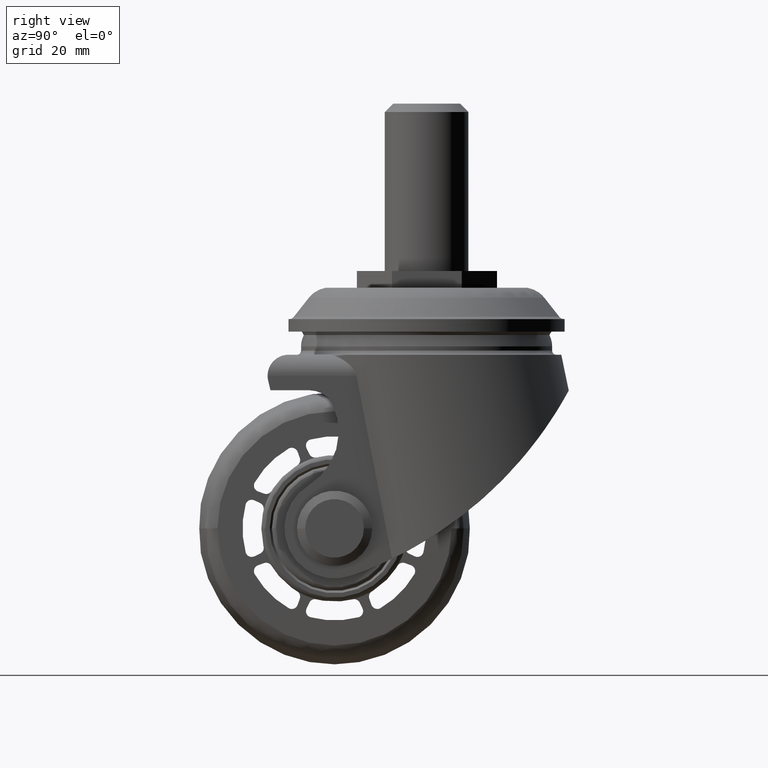
[diagram: clean part render]
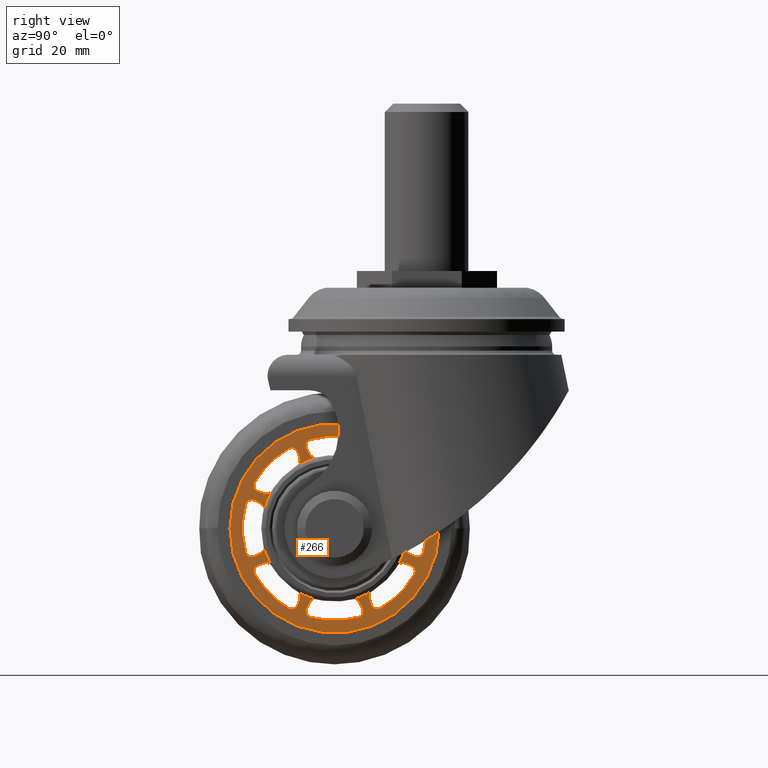
[diagram: same view with one face highlighted and labeled with its STEP entity id]
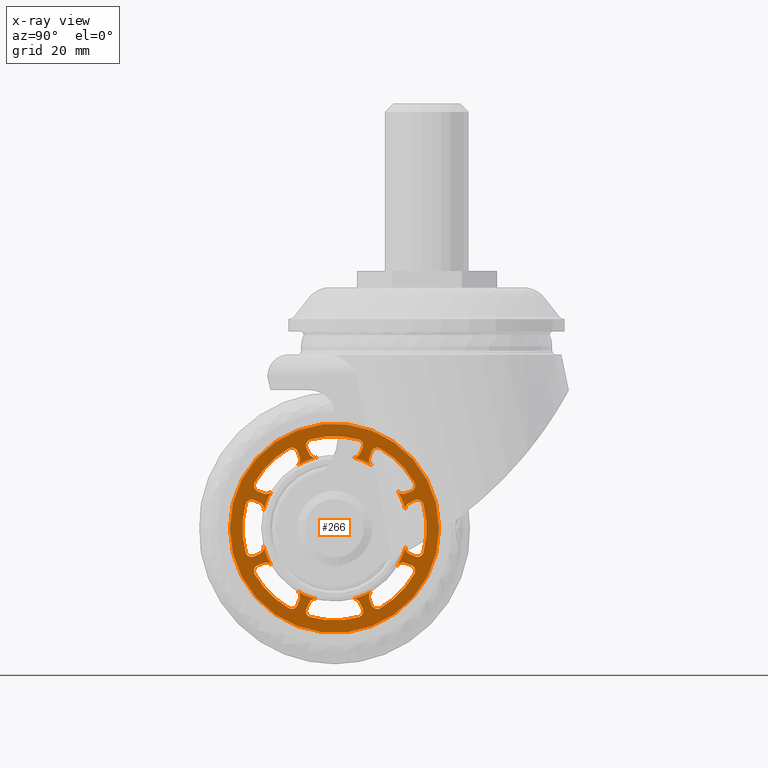
[diagram: x-ray of the same camera — body ghosted, the highlighted face saturated]
A machine part, right view. The second image highlights one B-rep face of the part: STEP entity #266.
The next image is the same camera in x-ray: the body ghosted, the highlighted face saturated — about 0% of this face is hidden behind the body in this view.
In plain terms, the highlighted planar face has unit normal (1, 0, 0).
Its self-contained STEP definition (entity closure, byte-faithful):
#266=ADVANCED_FACE('',(#1881,#1882),#1880,.T.);
#1880=PLANE('',#3576);
#1881=FACE_OUTER_BOUND('',#3577,.T.);
#1882=FACE_BOUND('',#3578,.T.);
#3573=CARTESIAN_POINT('',(2.00000000000E+01,-5.19615236035E+01,5.74999993100E+01));
#3574=DIRECTION('',(1.00000000000E+00,0.00000000000E+00,0.00000000000E+00));
#3575=DIRECTION('',(0.00000000000E+00,0.00000000000E+00,-1.00000000000E+00));
#3576=AXIS2_PLACEMENT_3D('',#3573,#3574,#3575);
#3577=EDGE_LOOP('',(#4996,#4997));
#3578=EDGE_LOOP('',(#4998,#4999,#5000,#5001,#5002,#5003,#5004,#5005,#5006,#5007,#5008,#5009,#5010,#5011,#5012,#5013,#5014,#5015,#5016,#5017,#5018,#5019,#5020,#5021,#5022,#5023,#5024,#5025,#5026,#5027,#5028,#5029,#5030,#5031,#5032,#5033,#5034,#5035,#5036,#5037,#5038,#5039,#5040,#5041,#5042,#5043,#5044,#5045,#5046,#5047,#5048,#5049,#5050,#5051,#5052,#5053,#5054,#5055,#5056,#5057,#5058,#5059,#5060,#5061));
#4996=ORIENTED_EDGE('',*,*,#5753,.T.);
#4997=ORIENTED_EDGE('',*,*,#5754,.T.);
#4998=ORIENTED_EDGE('',*,*,#5596,.F.);
#4999=ORIENTED_EDGE('',*,*,#5600,.F.);
#5000=ORIENTED_EDGE('',*,*,#5603,.F.);
#5001=ORIENTED_EDGE('',*,*,#5606,.F.);
#5002=ORIENTED_EDGE('',*,*,#5586,.F.);
#5003=ORIENTED_EDGE('',*,*,#5590,.F.);
#5004=ORIENTED_EDGE('',*,*,#5593,.F.);
#5005=ORIENTED_EDGE('',*,*,#5755,.F.);
#5006=ORIENTED_EDGE('',*,*,#5684,.F.);
#5007=ORIENTED_EDGE('',*,*,#5688,.F.);
#5008=ORIENTED_EDGE('',*,*,#5691,.F.);
#5009=ORIENTED_EDGE('',*,*,#5694,.F.);
#5010=ORIENTED_EDGE('',*,*,#5674,.F.);
#5011=ORIENTED_EDGE('',*,*,#5678,.F.);
#5012=ORIENTED_EDGE('',*,*,#5681,.F.);
#5013=ORIENTED_EDGE('',*,*,#5756,.F.);
#5014=ORIENTED_EDGE('',*,*,#5706,.F.);
#5015=ORIENTED_EDGE('',*,*,#5710,.F.);
#5016=ORIENTED_EDGE('',*,*,#5713,.F.);
#5017=ORIENTED_EDGE('',*,*,#5716,.F.);
#5018=ORIENTED_EDGE('',*,*,#5696,.F.);
#5019=ORIENTED_EDGE('',*,*,#5700,.F.);
#5020=ORIENTED_EDGE('',*,*,#5703,.F.);
#5021=ORIENTED_EDGE('',*,*,#5757,.F.);
#5022=ORIENTED_EDGE('',*,*,#5569,.F.);
#5023=ORIENTED_EDGE('',*,*,#5577,.F.);
#5024=ORIENTED_EDGE('',*,*,#5580,.F.);
#5025=ORIENTED_EDGE('',*,*,#5583,.F.);
#5026=ORIENTED_EDGE('',*,*,#5758,.F.);
#5027=ORIENTED_EDGE('',*,*,#5759,.F.);
#5028=ORIENTED_EDGE('',*,*,#5573,.F.);
#5029=ORIENTED_EDGE('',*,*,#5760,.F.);
#5030=ORIENTED_EDGE('',*,*,#5761,.F.);
#5031=ORIENTED_EDGE('',*,*,#5762,.F.);
#5032=ORIENTED_EDGE('',*,*,#5763,.F.);
#5033=ORIENTED_EDGE('',*,*,#5764,.F.);
#5034=ORIENTED_EDGE('',*,*,#5765,.F.);
#5035=ORIENTED_EDGE('',*,*,#5766,.F.);
#5036=ORIENTED_EDGE('',*,*,#5767,.F.);
#5037=ORIENTED_EDGE('',*,*,#5768,.F.);
#5038=ORIENTED_EDGE('',*,*,#5662,.F.);
#5039=ORIENTED_EDGE('',*,*,#5666,.F.);
#5040=ORIENTED_EDGE('',*,*,#5669,.F.);
#5041=ORIENTED_EDGE('',*,*,#5672,.F.);
#5042=ORIENTED_EDGE('',*,*,#5652,.F.);
#5043=ORIENTED_EDGE('',*,*,#5656,.F.);
#5044=ORIENTED_EDGE('',*,*,#5659,.F.);
#5045=ORIENTED_EDGE('',*,*,#5769,.F.);
#5046=ORIENTED_EDGE('',*,*,#5640,.F.);
#5047=ORIENTED_EDGE('',*,*,#5644,.F.);
#5048=ORIENTED_EDGE('',*,*,#5647,.F.);
#5049=ORIENTED_EDGE('',*,*,#5650,.F.);
#5050=ORIENTED_EDGE('',*,*,#5630,.F.);
#5051=ORIENTED_EDGE('',*,*,#5634,.F.);
#5052=ORIENTED_EDGE('',*,*,#5637,.F.);
#5053=ORIENTED_EDGE('',*,*,#5770,.F.);
#5054=ORIENTED_EDGE('',*,*,#5618,.F.);
#5055=ORIENTED_EDGE('',*,*,#5622,.F.);
#5056=ORIENTED_EDGE('',*,*,#5625,.F.);
#5057=ORIENTED_EDGE('',*,*,#5628,.F.);
#5058=ORIENTED_EDGE('',*,*,#5608,.F.);
#5059=ORIENTED_EDGE('',*,*,#5612,.F.);
#5060=ORIENTED_EDGE('',*,*,#5615,.F.);
#5061=ORIENTED_EDGE('',*,*,#5771,.F.);
#5569=EDGE_CURVE('',#7499,#7500,#7501,.T.);
#5573=EDGE_CURVE('',#7527,#7528,#7529,.T.);
#5577=EDGE_CURVE('',#7555,#7499,#7556,.T.);
#5580=EDGE_CURVE('',#7575,#7555,#7576,.T.);
#5583=EDGE_CURVE('',#7595,#7575,#7596,.T.);
#5586=EDGE_CURVE('',#7615,#7616,#7617,.T.);
#5590=EDGE_CURVE('',#7643,#7615,#7644,.T.);
#5593=EDGE_CURVE('',#7663,#7643,#7664,.T.);
#5596=EDGE_CURVE('',#7683,#7684,#7685,.T.);
#5600=EDGE_CURVE('',#7711,#7683,#7712,.T.);
#5603=EDGE_CURVE('',#7731,#7711,#7732,.T.);
#5606=EDGE_CURVE('',#7616,#7731,#7751,.T.);
#5608=EDGE_CURVE('',#7763,#7764,#7765,.T.);
#5612=EDGE_CURVE('',#7791,#7763,#7792,.T.);
#5615=EDGE_CURVE('',#7811,#7791,#7812,.T.);
#5618=EDGE_CURVE('',#7831,#7832,#7833,.T.);
#5622=EDGE_CURVE('',#7859,#7831,#7860,.T.);
#5625=EDGE_CURVE('',#7879,#7859,#7880,.T.);
#5628=EDGE_CURVE('',#7764,#7879,#7899,.T.);
#5630=EDGE_CURVE('',#7911,#7912,#7913,.T.);
#5634=EDGE_CURVE('',#7939,#7911,#7940,.T.);
#5637=EDGE_CURVE('',#7959,#7939,#7960,.T.);
#5640=EDGE_CURVE('',#7979,#7980,#7981,.T.);
#5644=EDGE_CURVE('',#8007,#7979,#8008,.T.);
#5647=EDGE_CURVE('',#8027,#8007,#8028,.T.);
#5650=EDGE_CURVE('',#7912,#8027,#8047,.T.);
#5652=EDGE_CURVE('',#8059,#8060,#8061,.T.);
#5656=EDGE_CURVE('',#8087,#8059,#8088,.T.);
#5659=EDGE_CURVE('',#8107,#8087,#8108,.T.);
#5662=EDGE_CURVE('',#8127,#8128,#8129,.T.);
#5666=EDGE_CURVE('',#8155,#8127,#8156,.T.);
#5669=EDGE_CURVE('',#8175,#8155,#8176,.T.);
#5672=EDGE_CURVE('',#8060,#8175,#8195,.T.);
#5674=EDGE_CURVE('',#8207,#8208,#8209,.T.);
#5678=EDGE_CURVE('',#8235,#8207,#8236,.T.);
#5681=EDGE_CURVE('',#8255,#8235,#8256,.T.);
#5684=EDGE_CURVE('',#8275,#8276,#8277,.T.);
#5688=EDGE_CURVE('',#8303,#8275,#8304,.T.);
#5691=EDGE_CURVE('',#8323,#8303,#8324,.T.);
#5694=EDGE_CURVE('',#8208,#8323,#8343,.T.);
#5696=EDGE_CURVE('',#8355,#8356,#8357,.T.);
#5700=EDGE_CURVE('',#8383,#8355,#8384,.T.);
#5703=EDGE_CURVE('',#8403,#8383,#8404,.T.);
#5706=EDGE_CURVE('',#8423,#8424,#8425,.T.);
#5710=EDGE_CURVE('',#8451,#8423,#8452,.T.);
#5713=EDGE_CURVE('',#8471,#8451,#8472,.T.);
#5716=EDGE_CURVE('',#8356,#8471,#8491,.T.);
#5753=EDGE_CURVE('',#8740,#8741,#8742,.T.);
#5754=EDGE_CURVE('',#8741,#8740,#8748,.T.);
#5755=EDGE_CURVE('',#8276,#7663,#8754,.T.);
#5756=EDGE_CURVE('',#8424,#8255,#8760,.T.);
#5757=EDGE_CURVE('',#7500,#8403,#8766,.T.);
#5758=EDGE_CURVE('',#8772,#7595,#8773,.T.);
#5759=EDGE_CURVE('',#7528,#8772,#8779,.T.);
#5760=EDGE_CURVE('',#8785,#7527,#8786,.T.);
#5761=EDGE_CURVE('',#8792,#8785,#8793,.T.);
#5762=EDGE_CURVE('',#8799,#8792,#8800,.T.);
#5763=EDGE_CURVE('',#8806,#8799,#8807,.T.);
#5764=EDGE_CURVE('',#8813,#8806,#8814,.T.);
#5765=EDGE_CURVE('',#8820,#8813,#8821,.T.);
#5766=EDGE_CURVE('',#8827,#8820,#8828,.T.);
#5767=EDGE_CURVE('',#8834,#8827,#8835,.T.);
#5768=EDGE_CURVE('',#8128,#8834,#8841,.T.);
#5769=EDGE_CURVE('',#7980,#8107,#8847,.T.);
#5770=EDGE_CURVE('',#7832,#7959,#8853,.T.);
#5771=EDGE_CURVE('',#7684,#7811,#8859,.T.);
#7499=VERTEX_POINT('',#10835);
#7500=VERTEX_POINT('',#10836);
#7501=CIRCLE('',#10840,1.50000000000E+00);
#7527=VERTEX_POINT('',#10853);
#7528=VERTEX_POINT('',#10854);
#7529=CIRCLE('',#10858,1.49999980000E+00);
#7555=VERTEX_POINT('',#10871);
#7556=LINE('',#10872,#10873);
#7575=VERTEX_POINT('',#10882);
#7576=CIRCLE('',#10886,1.50000000000E+00);
#7595=VERTEX_POINT('',#10895);
#7596=CIRCLE('',#10899,2.20000001000E+01);
#7615=VERTEX_POINT('',#10908);
#7616=VERTEX_POINT('',#10909);
#7617=CIRCLE('',#10913,1.50000000000E+00);
#7643=VERTEX_POINT('',#10926);
#7644=LINE('',#10927,#10928);
#7663=VERTEX_POINT('',#10937);
#7664=CIRCLE('',#10941,1.49999980000E+00);
#7683=VERTEX_POINT('',#10950);
#7684=VERTEX_POINT('',#10951);
#7685=CIRCLE('',#10955,1.50000000000E+00);
#7711=VERTEX_POINT('',#10968);
#7712=LINE('',#10969,#10970);
#7731=VERTEX_POINT('',#10979);
#7732=CIRCLE('',#10983,1.50000000000E+00);
#7751=CIRCLE('',#10995,2.20000001000E+01);
#7763=VERTEX_POINT('',#11000);
#7764=VERTEX_POINT('',#11001);
#7765=CIRCLE('',#11005,1.50000000000E+00);
#7791=VERTEX_POINT('',#11018);
#7792=LINE('',#11019,#11020);
#7811=VERTEX_POINT('',#11029);
#7812=CIRCLE('',#11033,1.49999980000E+00);
#7831=VERTEX_POINT('',#11042);
#7832=VERTEX_POINT('',#11043);
#7833=CIRCLE('',#11047,1.50000000000E+00);
#7859=VERTEX_POINT('',#11060);
#7860=LINE('',#11061,#11062);
#7879=VERTEX_POINT('',#11071);
#7880=CIRCLE('',#11075,1.50000000000E+00);
#7899=CIRCLE('',#11087,2.20000001000E+01);
#7911=VERTEX_POINT('',#11092);
#7912=VERTEX_POINT('',#11093);
#7913=CIRCLE('',#11097,1.50000000000E+00);
#7939=VERTEX_POINT('',#11110);
#7940=LINE('',#11111,#11112);
#7959=VERTEX_POINT('',#11121);
#7960=CIRCLE('',#11125,1.49999980000E+00);
#7979=VERTEX_POINT('',#11134);
#7980=VERTEX_POINT('',#11135);
#7981=CIRCLE('',#11139,1.50000000000E+00);
#8007=VERTEX_POINT('',#11152);
#8008=LINE('',#11153,#11154);
#8027=VERTEX_POINT('',#11163);
#8028=CIRCLE('',#11167,1.50000000000E+00);
#8047=CIRCLE('',#11179,2.20000001000E+01);
#8059=VERTEX_POINT('',#11184);
#8060=VERTEX_POINT('',#11185);
#8061=CIRCLE('',#11189,1.50000000000E+00);
#8087=VERTEX_POINT('',#11202);
#8088=LINE('',#11203,#11204);
#8107=VERTEX_POINT('',#11213);
#8108=CIRCLE('',#11217,1.49999980000E+00);
#8127=VERTEX_POINT('',#11226);
#8128=VERTEX_POINT('',#11227);
#8129=CIRCLE('',#11231,1.50000000000E+00);
#8155=VERTEX_POINT('',#11244);
#8156=LINE('',#11245,#11246);
#8175=VERTEX_POINT('',#11255);
#8176=CIRCLE('',#11259,1.50000000000E+00);
#8195=CIRCLE('',#11271,2.20000001000E+01);
#8207=VERTEX_POINT('',#11276);
#8208=VERTEX_POINT('',#11277);
#8209=CIRCLE('',#11281,1.50000000000E+00);
#8235=VERTEX_POINT('',#11294);
#8236=LINE('',#11295,#11296);
#8255=VERTEX_POINT('',#11305);
#8256=CIRCLE('',#11309,1.49999980000E+00);
#8275=VERTEX_POINT('',#11318);
#8276=VERTEX_POINT('',#11319);
#8277=CIRCLE('',#11323,1.50000000000E+00);
#8303=VERTEX_POINT('',#11336);
#8304=LINE('',#11337,#11338);
#8323=VERTEX_POINT('',#11347);
#8324=CIRCLE('',#11351,1.50000000000E+00);
#8343=CIRCLE('',#11363,2.20000001000E+01);
#8355=VERTEX_POINT('',#11368);
#8356=VERTEX_POINT('',#11369);
#8357=CIRCLE('',#11373,1.50000000000E+00);
#8383=VERTEX_POINT('',#11386);
#8384=LINE('',#11387,#11388);
#8403=VERTEX_POINT('',#11397);
#8404=CIRCLE('',#11401,1.49999980000E+00);
#8423=VERTEX_POINT('',#11410);
#8424=VERTEX_POINT('',#11411);
#8425=CIRCLE('',#11415,1.50000000000E+00);
#8451=VERTEX_POINT('',#11428);
#8452=LINE('',#11429,#11430);
#8471=VERTEX_POINT('',#11439);
#8472=CIRCLE('',#11443,1.50000000000E+00);
#8491=CIRCLE('',#11455,2.20000001000E+01);
#8740=VERTEX_POINT('',#11624);
#8741=VERTEX_POINT('',#11625);
#8742=CIRCLE('',#11629,2.49999997000E+01);
#8748=CIRCLE('',#11633,2.49999997000E+01);
#8754=CIRCLE('',#11637,1.75000000000E+01);
#8760=CIRCLE('',#11641,1.75000000000E+01);
#8766=CIRCLE('',#11645,1.75000000000E+01);
#8772=VERTEX_POINT('',#11646);
#8773=CIRCLE('',#11650,1.50000000000E+00);
#8779=LINE('',#11651,#11652);
#8785=VERTEX_POINT('',#11654);
#8786=CIRCLE('',#11658,1.75000000000E+01);
#8792=VERTEX_POINT('',#11659);
#8793=CIRCLE('',#11663,1.50000000000E+00);
#8799=VERTEX_POINT('',#11664);
#8800=LINE('',#11665,#11666);
#8806=VERTEX_POINT('',#11668);
#8807=CIRCLE('',#11672,1.50000000000E+00);
#8813=VERTEX_POINT('',#11673);
#8814=CIRCLE('',#11677,2.20000001000E+01);
#8820=VERTEX_POINT('',#11678);
#8821=CIRCLE('',#11682,1.50000000000E+00);
#8827=VERTEX_POINT('',#11683);
#8828=LINE('',#11684,#11685);
#8834=VERTEX_POINT('',#11687);
#8835=CIRCLE('',#11691,1.49999980000E+00);
#8841=CIRCLE('',#11695,1.75000000000E+01);
#8847=CIRCLE('',#11699,1.75000000000E+01);
#8853=CIRCLE('',#11703,1.75000000000E+01);
#8859=CIRCLE('',#11707,1.75000000000E+01);
#10835=CARTESIAN_POINT('',(2.00000000000E+01,1.68301224777E+01,-8.30188446219E+00));
#10836=CARTESIAN_POINT('',(2.00000000000E+01,1.50391446252E+01,-8.94841488441E+00));
#10837=CARTESIAN_POINT('',(2.00000000000E+01,1.63282142074E+01,-9.71542190007E+00));
#10838=DIRECTION('',(1.00000000000E+00,0.00000000000E+00,0.00000000000E+00));
#10839=DIRECTION('',(-0.00000000000E+00,7.07106781187E-01,7.07106781187E-01));
#10840=AXIS2_PLACEMENT_3D('',#10837,#10838,#10839);
#10853=CARTESIAN_POINT('',(2.00000000000E+01,8.94841477995E+00,-1.50391447455E+01));
#10854=CARTESIAN_POINT('',(2.00000000000E+01,8.30188440723E+00,-1.68301223229E+01));
#10855=CARTESIAN_POINT('',(2.00000000000E+01,9.71542165663E+00,-1.63282141196E+01));
#10856=DIRECTION('',(1.00000000000E+00,0.00000000000E+00,0.00000000000E+00));
#10857=DIRECTION('',(-0.00000000000E+00,7.07106781187E-01,7.07106781187E-01));
#10858=AXIS2_PLACEMENT_3D('',#10855,#10856,#10857);
#10871=CARTESIAN_POINT('',(2.00000000000E+01,1.82690625420E+01,-8.81281250648E+00));
#10872=CARTESIAN_POINT('',(2.00000000000E+01,1.82690625420E+01,-8.81281250648E+00));
#10873=VECTOR('',#10874,1.52695644178E+00);
#10874=DIRECTION('',(0.00000000000E+00,-9.42358291915E-01,3.34605513493E-01));
#10882=CARTESIAN_POINT('',(2.00000000000E+01,1.90671899438E+01,-1.09746194488E+01));
#10883=CARTESIAN_POINT('',(2.00000000000E+01,1.77671542717E+01,-1.02263499444E+01));
#10884=DIRECTION('',(1.00000000000E+00,0.00000000000E+00,0.00000000000E+00));
#10885=DIRECTION('',(-0.00000000000E+00,8.66690448052E-01,-4.98846336315E-01));
#10886=AXIS2_PLACEMENT_3D('',#10883,#10884,#10885);
#10895=CARTESIAN_POINT('',(2.00000000000E+01,1.09746195284E+01,-1.90671898980E+01));
#10896=CARTESIAN_POINT('',(2.00000000000E+01,-7.11448145341E-14,7.11448145341E-14));
#10897=DIRECTION('',(1.00000000000E+00,0.00000000000E+00,0.00000000000E+00));
#10898=DIRECTION('',(-0.00000000000E+00,7.07106781187E-01,7.07106781187E-01));
#10899=AXIS2_PLACEMENT_3D('',#10896,#10897,#10898);
#10908=CARTESIAN_POINT('',(2.00000000000E+01,6.68657852470E+00,1.91497774940E+01));
#10909=CARTESIAN_POINT('',(2.00000000000E+01,5.72231138554E+00,2.12427671645E+01));
#10910=CARTESIAN_POINT('',(2.00000000000E+01,5.33215387550E+00,1.97943966604E+01));
#10911=DIRECTION('',(1.00000000000E+00,0.00000000000E+00,0.00000000000E+00));
#10912=DIRECTION('',(-0.00000000000E+00,-1.00000000000E+00,6.12323399574E-17));
#10913=AXIS2_PLACEMENT_3D('',#10910,#10911,#10912);
#10926=CARTESIAN_POINT('',(2.00000000000E+01,6.03037486172E+00,1.77710123837E+01));
#10927=CARTESIAN_POINT('',(2.00000000000E+01,6.03037486172E+00,1.77710123837E+01));
#10928=VECTOR('',#10929,1.52695660605E+00);
#10929=DIRECTION('',(0.00000000000E+00,4.29746110907E-01,9.02949766133E-01));
#10937=CARTESIAN_POINT('',(2.00000000000E+01,4.30679646101E+00,1.69617660046E+01));
#10938=CARTESIAN_POINT('',(2.00000000000E+01,4.67595039311E+00,1.84156314641E+01));
#10939=DIRECTION('',(1.00000000000E+00,0.00000000000E+00,0.00000000000E+00));
#10940=DIRECTION('',(-0.00000000000E+00,-1.00000000000E+00,6.12323399574E-17));
#10941=AXIS2_PLACEMENT_3D('',#10938,#10939,#10940);
#10950=CARTESIAN_POINT('',(2.00000000000E+01,-6.03037493231E+00,1.77710125320E+01));
#10951=CARTESIAN_POINT('',(2.00000000000E+01,-4.30679630206E+00,1.69617659933E+01));
#10952=CARTESIAN_POINT('',(2.00000000000E+01,-4.67595028311E+00,1.84156316984E+01));
#10953=DIRECTION('',(1.00000000000E+00,0.00000000000E+00,0.00000000000E+00));
#10954=DIRECTION('',(-0.00000000000E+00,-1.00000000000E+00,6.12323399574E-17));
#10955=AXIS2_PLACEMENT_3D('',#10952,#10953,#10954);
#10968=CARTESIAN_POINT('',(2.00000000000E+01,-6.68657852470E+00,1.91497774940E+01));
#10969=CARTESIAN_POINT('',(2.00000000000E+01,-6.68657852470E+00,1.91497774940E+01));
#10970=VECTOR('',#10971,1.52695644178E+00);
#10971=DIRECTION('',(0.00000000000E+00,4.29746110907E-01,-9.02949766133E-01));
#10979=CARTESIAN_POINT('',(2.00000000000E+01,-5.72231147424E+00,2.12427671406E+01));
#10980=CARTESIAN_POINT('',(2.00000000000E+01,-5.33215387550E+00,1.97943966604E+01));
#10981=DIRECTION('',(1.00000000000E+00,0.00000000000E+00,0.00000000000E+00));
#10982=DIRECTION('',(-0.00000000000E+00,-2.60105065829E-01,9.65580320186E-01));
#10983=AXIS2_PLACEMENT_3D('',#10980,#10981,#10982);
#10992=CARTESIAN_POINT('',(2.00000000000E+01,-6.16082830156E-30,-1.00613961607E-13));
#10993=DIRECTION('',(1.00000000000E+00,0.00000000000E+00,0.00000000000E+00));
#10994=DIRECTION('',(-0.00000000000E+00,-1.00000000000E+00,6.12323399574E-17));
#10995=AXIS2_PLACEMENT_3D('',#10992,#10993,#10994);
#11000=CARTESIAN_POINT('',(2.00000000000E+01,-8.81281250648E+00,1.82690625420E+01));
#11001=CARTESIAN_POINT('',(2.00000000000E+01,-1.09746195284E+01,1.90671898980E+01));
#11002=CARTESIAN_POINT('',(2.00000000000E+01,-1.02263499444E+01,1.77671542717E+01));
#11003=DIRECTION('',(1.00000000000E+00,0.00000000000E+00,-0.00000000000E+00));
#11004=DIRECTION('',(-0.00000000000E+00,-7.07106781187E-01,-7.07106781187E-01));
#11005=AXIS2_PLACEMENT_3D('',#11002,#11003,#11004);
#11018=CARTESIAN_POINT('',(2.00000000000E+01,-8.30188440723E+00,1.68301223229E+01));
#11019=CARTESIAN_POINT('',(2.00000000000E+01,-8.30188440723E+00,1.68301223229E+01));
#11020=VECTOR('',#11021,1.52695660605E+00);
#11021=DIRECTION('',(0.00000000000E+00,-3.34605513493E-01,9.42358291915E-01));
#11029=CARTESIAN_POINT('',(2.00000000000E+01,-8.94841477995E+00,1.50391447455E+01));
#11030=CARTESIAN_POINT('',(2.00000000000E+01,-9.71542165663E+00,1.63282141196E+01));
#11031=DIRECTION('',(1.00000000000E+00,0.00000000000E+00,-0.00000000000E+00));
#11032=DIRECTION('',(-0.00000000000E+00,-7.07106781187E-01,-7.07106781187E-01));
#11033=AXIS2_PLACEMENT_3D('',#11030,#11031,#11032);
#11042=CARTESIAN_POINT('',(2.00000000000E+01,-1.68301224777E+01,8.30188446219E+00));
#11043=CARTESIAN_POINT('',(2.00000000000E+01,-1.50391446252E+01,8.94841488441E+00));
#11044=CARTESIAN_POINT('',(2.00000000000E+01,-1.63282142074E+01,9.71542190007E+00));
#11045=DIRECTION('',(1.00000000000E+00,0.00000000000E+00,-0.00000000000E+00));
#11046=DIRECTION('',(-0.00000000000E+00,-7.07106781187E-01,-7.07106781187E-01));
#11047=AXIS2_PLACEMENT_3D('',#11044,#11045,#11046);
#11060=CARTESIAN_POINT('',(2.00000000000E+01,-1.82690625420E+01,8.81281250648E+00));
#11061=CARTESIAN_POINT('',(2.00000000000E+01,-1.82690625420E+01,8.81281250648E+00));
#11062=VECTOR('',#11063,1.52695644178E+00);
#11063=DIRECTION('',(0.00000000000E+00,9.42358291915E-01,-3.34605513493E-01));
#11071=CARTESIAN_POINT('',(2.00000000000E+01,-1.90671899438E+01,1.09746194488E+01));
#11072=CARTESIAN_POINT('',(2.00000000000E+01,-1.77671542717E+01,1.02263499444E+01));
#11073=DIRECTION('',(1.00000000000E+00,0.00000000000E+00,0.00000000000E+00));
#11074=DIRECTION('',(0.00000000000E+00,-8.66690448052E-01,4.98846336315E-01));
#11075=AXIS2_PLACEMENT_3D('',#11072,#11073,#11074);
#11084=CARTESIAN_POINT('',(2.00000000000E+01,7.11448145341E-14,-7.11448145341E-14));
#11085=DIRECTION('',(1.00000000000E+00,0.00000000000E+00,-0.00000000000E+00));
#11086=DIRECTION('',(-0.00000000000E+00,-7.07106781187E-01,-7.07106781187E-01));
#11087=AXIS2_PLACEMENT_3D('',#11084,#11085,#11086);
#11092=CARTESIAN_POINT('',(2.00000000000E+01,-1.91497774940E+01,6.68657852470E+00));
#11093=CARTESIAN_POINT('',(2.00000000000E+01,-2.12427671645E+01,5.72231138554E+00));
#11094=CARTESIAN_POINT('',(2.00000000000E+01,-1.97943966604E+01,5.33215387550E+00));
#11095=DIRECTION('',(1.00000000000E+00,0.00000000000E+00,-0.00000000000E+00));
#11096=DIRECTION('',(-0.00000000000E+00,-1.22464679915E-16,-1.00000000000E+00));
#11097=AXIS2_PLACEMENT_3D('',#11094,#11095,#11096);
#11110=CARTESIAN_POINT('',(2.00000000000E+01,-1.77710123837E+01,6.03037486172E+00));
#11111=CARTESIAN_POINT('',(2.00000000000E+01,-1.77710123837E+01,6.03037486172E+00));
#11112=VECTOR('',#11113,1.52695660605E+00);
#11113=DIRECTION('',(0.00000000000E+00,-9.02949766133E-01,4.29746110907E-01));
#11121=CARTESIAN_POINT('',(2.00000000000E+01,-1.69617660046E+01,4.30679646101E+00));
#11122=CARTESIAN_POINT('',(2.00000000000E+01,-1.84156314641E+01,4.67595039311E+00));
#11123=DIRECTION('',(1.00000000000E+00,0.00000000000E+00,-0.00000000000E+00));
#11124=DIRECTION('',(-0.00000000000E+00,-1.22464679915E-16,-1.00000000000E+00));
#11125=AXIS2_PLACEMENT_3D('',#11122,#11123,#11124);
#11134=CARTESIAN_POINT('',(2.00000000000E+01,-1.77710125320E+01,-6.03037493231E+00));
#11135=CARTESIAN_POINT('',(2.00000000000E+01,-1.69617659933E+01,-4.30679630206E+00));
#11136=CARTESIAN_POINT('',(2.00000000000E+01,-1.84156316984E+01,-4.67595028311E+00));
#11137=DIRECTION('',(1.00000000000E+00,0.00000000000E+00,-0.00000000000E+00));
#11138=DIRECTION('',(-0.00000000000E+00,-1.22464679915E-16,-1.00000000000E+00));
#11139=AXIS2_PLACEMENT_3D('',#11136,#11137,#11138);
#11152=CARTESIAN_POINT('',(2.00000000000E+01,-1.91497774940E+01,-6.68657852470E+00));
#11153=CARTESIAN_POINT('',(2.00000000000E+01,-1.91497774940E+01,-6.68657852470E+00));
#11154=VECTOR('',#11155,1.52695644178E+00);
#11155=DIRECTION('',(0.00000000000E+00,9.02949766133E-01,4.29746110907E-01));
#11163=CARTESIAN_POINT('',(2.00000000000E+01,-2.12427671406E+01,-5.72231147424E+00));
#11164=CARTESIAN_POINT('',(2.00000000000E+01,-1.97943966604E+01,-5.33215387550E+00));
#11165=DIRECTION('',(1.00000000000E+00,0.00000000000E+00,0.00000000000E+00));
#11166=DIRECTION('',(0.00000000000E+00,-9.65580320186E-01,-2.60105065829E-01));
#11167=AXIS2_PLACEMENT_3D('',#11164,#11165,#11166);
#11176=CARTESIAN_POINT('',(2.00000000000E+01,1.00613961607E-13,-1.23216566031E-29));
#11177=DIRECTION('',(1.00000000000E+00,0.00000000000E+00,-0.00000000000E+00));
#11178=DIRECTION('',(-0.00000000000E+00,-1.22464679915E-16,-1.00000000000E+00));
#11179=AXIS2_PLACEMENT_3D('',#11176,#11177,#11178);
#11184=CARTESIAN_POINT('',(2.00000000000E+01,-1.82690625420E+01,-8.81281250648E+00));
#11185=CARTESIAN_POINT('',(2.00000000000E+01,-1.90671898980E+01,-1.09746195284E+01));
#11186=CARTESIAN_POINT('',(2.00000000000E+01,-1.77671542717E+01,-1.02263499444E+01));
#11187=DIRECTION('',(1.00000000000E+00,0.00000000000E+00,0.00000000000E+00));
#11188=DIRECTION('',(-0.00000000000E+00,7.07106781187E-01,-7.07106781187E-01));
#11189=AXIS2_PLACEMENT_3D('',#11186,#11187,#11188);
#11202=CARTESIAN_POINT('',(2.00000000000E+01,-1.68301223229E+01,-8.30188440723E+00));
#11203=CARTESIAN_POINT('',(2.00000000000E+01,-1.68301223229E+01,-8.30188440723E+00));
#11204=VECTOR('',#11205,1.52695660605E+00);
#11205=DIRECTION('',(0.00000000000E+00,-9.42358291915E-01,-3.34605513493E-01));
#11213=CARTESIAN_POINT('',(2.00000000000E+01,-1.50391447455E+01,-8.94841477995E+00));
#11214=CARTESIAN_POINT('',(2.00000000000E+01,-1.63282141196E+01,-9.71542165663E+00));
#11215=DIRECTION('',(1.00000000000E+00,0.00000000000E+00,0.00000000000E+00));
#11216=DIRECTION('',(-0.00000000000E+00,7.07106781187E-01,-7.07106781187E-01));
#11217=AXIS2_PLACEMENT_3D('',#11214,#11215,#11216);
#11226=CARTESIAN_POINT('',(2.00000000000E+01,-8.30188446219E+00,-1.68301224777E+01));
#11227=CARTESIAN_POINT('',(2.00000000000E+01,-8.94841488441E+00,-1.50391446252E+01));
#11228=CARTESIAN_POINT('',(2.00000000000E+01,-9.71542190007E+00,-1.63282142074E+01));
#11229=DIRECTION('',(1.00000000000E+00,0.00000000000E+00,0.00000000000E+00));
#11230=DIRECTION('',(-0.00000000000E+00,7.07106781187E-01,-7.07106781187E-01));
#11231=AXIS2_PLACEMENT_3D('',#11228,#11229,#11230);
#11244=CARTESIAN_POINT('',(2.00000000000E+01,-8.81281250648E+00,-1.82690625420E+01));
#11245=CARTESIAN_POINT('',(2.00000000000E+01,-8.81281250648E+00,-1.82690625420E+01));
#11246=VECTOR('',#11247,1.52695644178E+00);
#11247=DIRECTION('',(0.00000000000E+00,3.34605513493E-01,9.42358291915E-01));
#11255=CARTESIAN_POINT('',(2.00000000000E+01,-1.09746194488E+01,-1.90671899438E+01));
#11256=CARTESIAN_POINT('',(2.00000000000E+01,-1.02263499444E+01,-1.77671542717E+01));
#11257=DIRECTION('',(1.00000000000E+00,0.00000000000E+00,0.00000000000E+00));
#11258=DIRECTION('',(0.00000000000E+00,-4.98846336315E-01,-8.66690448052E-01));
#11259=AXIS2_PLACEMENT_3D('',#11256,#11257,#11258);
#11268=CARTESIAN_POINT('',(2.00000000000E+01,7.11448145341E-14,7.11448145341E-14));
#11269=DIRECTION('',(1.00000000000E+00,0.00000000000E+00,0.00000000000E+00));
#11270=DIRECTION('',(-0.00000000000E+00,7.07106781187E-01,-7.07106781187E-01));
#11271=AXIS2_PLACEMENT_3D('',#11268,#11269,#11270);
#11276=CARTESIAN_POINT('',(2.00000000000E+01,1.82690625420E+01,8.81281250648E+00));
#11277=CARTESIAN_POINT('',(2.00000000000E+01,1.90671898980E+01,1.09746195284E+01));
#11278=CARTESIAN_POINT('',(2.00000000000E+01,1.77671542717E+01,1.02263499444E+01));
#11279=DIRECTION('',(1.00000000000E+00,0.00000000000E+00,0.00000000000E+00));
#11280=DIRECTION('',(-0.00000000000E+00,-7.07106781187E-01,7.07106781187E-01));
#11281=AXIS2_PLACEMENT_3D('',#11278,#11279,#11280);
#11294=CARTESIAN_POINT('',(2.00000000000E+01,1.68301223229E+01,8.30188440723E+00));
#11295=CARTESIAN_POINT('',(2.00000000000E+01,1.68301223229E+01,8.30188440723E+00));
#11296=VECTOR('',#11297,1.52695660605E+00);
#11297=DIRECTION('',(0.00000000000E+00,9.42358291915E-01,3.34605513493E-01));
#11305=CARTESIAN_POINT('',(2.00000000000E+01,1.50391447455E+01,8.94841477995E+00));
#11306=CARTESIAN_POINT('',(2.00000000000E+01,1.63282141196E+01,9.71542165663E+00));
#11307=DIRECTION('',(1.00000000000E+00,0.00000000000E+00,0.00000000000E+00));
#11308=DIRECTION('',(-0.00000000000E+00,-7.07106781187E-01,7.07106781187E-01));
#11309=AXIS2_PLACEMENT_3D('',#11306,#11307,#11308);
#11318=CARTESIAN_POINT('',(2.00000000000E+01,8.30188446219E+00,1.68301224777E+01));
#11319=CARTESIAN_POINT('',(2.00000000000E+01,8.94841488441E+00,1.50391446252E+01));
#11320=CARTESIAN_POINT('',(2.00000000000E+01,9.71542190007E+00,1.63282142074E+01));
#11321=DIRECTION('',(1.00000000000E+00,0.00000000000E+00,0.00000000000E+00));
#11322=DIRECTION('',(-0.00000000000E+00,-7.07106781187E-01,7.07106781187E-01));
#11323=AXIS2_PLACEMENT_3D('',#11320,#11321,#11322);
#11336=CARTESIAN_POINT('',(2.00000000000E+01,8.81281250648E+00,1.82690625420E+01));
#11337=CARTESIAN_POINT('',(2.00000000000E+01,8.81281250648E+00,1.82690625420E+01));
#11338=VECTOR('',#11339,1.52695644178E+00);
#11339=DIRECTION('',(0.00000000000E+00,-3.34605513493E-01,-9.42358291915E-01));
#11347=CARTESIAN_POINT('',(2.00000000000E+01,1.09746194488E+01,1.90671899438E+01));
#11348=CARTESIAN_POINT('',(2.00000000000E+01,1.02263499444E+01,1.77671542717E+01));
#11349=DIRECTION('',(1.00000000000E+00,0.00000000000E+00,0.00000000000E+00));
#11350=DIRECTION('',(-0.00000000000E+00,4.98846336315E-01,8.66690448052E-01));
#11351=AXIS2_PLACEMENT_3D('',#11348,#11349,#11350);
#11360=CARTESIAN_POINT('',(2.00000000000E+01,-7.11448145341E-14,-7.11448145341E-14));
#11361=DIRECTION('',(1.00000000000E+00,0.00000000000E+00,0.00000000000E+00));
#11362=DIRECTION('',(-0.00000000000E+00,-7.07106781187E-01,7.07106781187E-01));
#11363=AXIS2_PLACEMENT_3D('',#11360,#11361,#11362);
#11368=CARTESIAN_POINT('',(2.00000000000E+01,1.91497774940E+01,-6.68657852470E+00));
#11369=CARTESIAN_POINT('',(2.00000000000E+01,2.12427671645E+01,-5.72231138554E+00));
#11370=CARTESIAN_POINT('',(2.00000000000E+01,1.97943966604E+01,-5.33215387550E+00));
#11371=DIRECTION('',(1.00000000000E+00,0.00000000000E+00,0.00000000000E+00));
#11372=DIRECTION('',(-0.00000000000E+00,-0.00000000000E+00,1.00000000000E+00));
#11373=AXIS2_PLACEMENT_3D('',#11370,#11371,#11372);
#11386=CARTESIAN_POINT('',(2.00000000000E+01,1.77710123837E+01,-6.03037486172E+00));
#11387=CARTESIAN_POINT('',(2.00000000000E+01,1.77710123837E+01,-6.03037486172E+00));
#11388=VECTOR('',#11389,1.52695660605E+00);
#11389=DIRECTION('',(0.00000000000E+00,9.02949766133E-01,-4.29746110907E-01));
#11397=CARTESIAN_POINT('',(2.00000000000E+01,1.69617660046E+01,-4.30679646101E+00));
#11398=CARTESIAN_POINT('',(2.00000000000E+01,1.84156314641E+01,-4.67595039311E+00));
#11399=DIRECTION('',(1.00000000000E+00,0.00000000000E+00,0.00000000000E+00));
#11400=DIRECTION('',(-0.00000000000E+00,-0.00000000000E+00,1.00000000000E+00));
#11401=AXIS2_PLACEMENT_3D('',#11398,#11399,#11400);
#11410=CARTESIAN_POINT('',(2.00000000000E+01,1.77710125320E+01,6.03037493231E+00));
#11411=CARTESIAN_POINT('',(2.00000000000E+01,1.69617660418E+01,4.30679631437E+00));
#11412=CARTESIAN_POINT('',(2.00000000000E+01,1.84156316984E+01,4.67595028311E+00));
#11413=DIRECTION('',(1.00000000000E+00,0.00000000000E+00,0.00000000000E+00));
#11414=DIRECTION('',(-0.00000000000E+00,-0.00000000000E+00,1.00000000000E+00));
#11415=AXIS2_PLACEMENT_3D('',#11412,#11413,#11414);
#11428=CARTESIAN_POINT('',(2.00000000000E+01,1.91497774940E+01,6.68657852470E+00));
#11429=CARTESIAN_POINT('',(2.00000000000E+01,1.91497774940E+01,6.68657852470E+00));
#11430=VECTOR('',#11431,1.52695644178E+00);
#11431=DIRECTION('',(0.00000000000E+00,-9.02949766133E-01,-4.29746110907E-01));
#11439=CARTESIAN_POINT('',(2.00000000000E+01,2.12427671406E+01,5.72231147424E+00));
#11440=CARTESIAN_POINT('',(2.00000000000E+01,1.97943966604E+01,5.33215387550E+00));
#11441=DIRECTION('',(1.00000000000E+00,0.00000000000E+00,0.00000000000E+00));
#11442=DIRECTION('',(-0.00000000000E+00,9.65580320186E-01,2.60105065829E-01));
#11443=AXIS2_PLACEMENT_3D('',#11440,#11441,#11442);
#11452=CARTESIAN_POINT('',(2.00000000000E+01,-1.00613961607E-13,0.00000000000E+00));
#11453=DIRECTION('',(1.00000000000E+00,0.00000000000E+00,0.00000000000E+00));
#11454=DIRECTION('',(-0.00000000000E+00,-0.00000000000E+00,1.00000000000E+00));
#11455=AXIS2_PLACEMENT_3D('',#11452,#11453,#11454);
#11624=CARTESIAN_POINT('',(2.00000000000E+01,0.00000000000E+00,-2.49999997000E+01));
#11625=CARTESIAN_POINT('',(2.00000000000E+01,-1.18423789293E-15,2.49999997000E+01));
#11626=CARTESIAN_POINT('',(2.00000000000E+01,0.00000000000E+00,0.00000000000E+00));
#11627=DIRECTION('',(1.00000000000E+00,0.00000000000E+00,0.00000000000E+00));
#11628=DIRECTION('',(0.00000000000E+00,-1.22460635382E-16,-1.00000000000E+00));
#11629=AXIS2_PLACEMENT_3D('',#11626,#11627,#11628);
#11630=CARTESIAN_POINT('',(2.00000000000E+01,0.00000000000E+00,0.00000000000E+00));
#11631=DIRECTION('',(1.00000000000E+00,0.00000000000E+00,0.00000000000E+00));
#11632=DIRECTION('',(0.00000000000E+00,-1.22460635382E-16,-1.00000000000E+00));
#11633=AXIS2_PLACEMENT_3D('',#11630,#11631,#11632);
#11634=CARTESIAN_POINT('',(2.00000000000E+01,0.00000000000E+00,0.00000000000E+00));
#11635=DIRECTION('',(1.00000000000E+00,0.00000000000E+00,0.00000000000E+00));
#11636=DIRECTION('',(-0.00000000000E+00,-0.00000000000E+00,1.00000000000E+00));
#11637=AXIS2_PLACEMENT_3D('',#11634,#11635,#11636);
#11638=CARTESIAN_POINT('',(2.00000000000E+01,0.00000000000E+00,0.00000000000E+00));
#11639=DIRECTION('',(1.00000000000E+00,0.00000000000E+00,0.00000000000E+00));
#11640=DIRECTION('',(-0.00000000000E+00,-0.00000000000E+00,1.00000000000E+00));
#11641=AXIS2_PLACEMENT_3D('',#11638,#11639,#11640);
#11642=CARTESIAN_POINT('',(2.00000000000E+01,0.00000000000E+00,0.00000000000E+00));
#11643=DIRECTION('',(1.00000000000E+00,0.00000000000E+00,0.00000000000E+00));
#11644=DIRECTION('',(-0.00000000000E+00,-0.00000000000E+00,1.00000000000E+00));
#11645=AXIS2_PLACEMENT_3D('',#11642,#11643,#11644);
#11646=CARTESIAN_POINT('',(2.00000000000E+01,8.81281250648E+00,-1.82690625420E+01));
#11647=CARTESIAN_POINT('',(2.00000000000E+01,1.02263499444E+01,-1.77671542717E+01));
#11648=DIRECTION('',(1.00000000000E+00,0.00000000000E+00,0.00000000000E+00));
#11649=DIRECTION('',(-0.00000000000E+00,7.07106781187E-01,7.07106781187E-01));
#11650=AXIS2_PLACEMENT_3D('',#11647,#11648,#11649);
#11651=CARTESIAN_POINT('',(2.00000000000E+01,8.30188440723E+00,-1.68301223229E+01));
#11652=VECTOR('',#11653,1.52695660605E+00);
#11653=DIRECTION('',(0.00000000000E+00,3.34605513493E-01,-9.42358291915E-01));
#11654=CARTESIAN_POINT('',(2.00000000000E+01,4.30679630206E+00,-1.69617659933E+01));
#11655=CARTESIAN_POINT('',(2.00000000000E+01,0.00000000000E+00,0.00000000000E+00));
#11656=DIRECTION('',(1.00000000000E+00,0.00000000000E+00,0.00000000000E+00));
#11657=DIRECTION('',(-0.00000000000E+00,-0.00000000000E+00,1.00000000000E+00));
#11658=AXIS2_PLACEMENT_3D('',#11655,#11656,#11657);
#11659=CARTESIAN_POINT('',(2.00000000000E+01,6.03037493231E+00,-1.77710125320E+01));
#11660=CARTESIAN_POINT('',(2.00000000000E+01,4.67595028311E+00,-1.84156316984E+01));
#11661=DIRECTION('',(1.00000000000E+00,0.00000000000E+00,0.00000000000E+00));
#11662=DIRECTION('',(-0.00000000000E+00,1.00000000000E+00,-1.83697019872E-16));
#11663=AXIS2_PLACEMENT_3D('',#11660,#11661,#11662);
#11664=CARTESIAN_POINT('',(2.00000000000E+01,6.68657852470E+00,-1.91497774940E+01));
#11665=CARTESIAN_POINT('',(2.00000000000E+01,6.68657852470E+00,-1.91497774940E+01));
#11666=VECTOR('',#11667,1.52695644178E+00);
#11667=DIRECTION('',(0.00000000000E+00,-4.29746110907E-01,9.02949766133E-01));
#11668=CARTESIAN_POINT('',(2.00000000000E+01,5.72231147424E+00,-2.12427671406E+01));
#11669=CARTESIAN_POINT('',(2.00000000000E+01,5.33215387550E+00,-1.97943966604E+01));
#11670=DIRECTION('',(1.00000000000E+00,0.00000000000E+00,0.00000000000E+00));
#11671=DIRECTION('',(0.00000000000E+00,2.60105065829E-01,-9.65580320186E-01));
#11672=AXIS2_PLACEMENT_3D('',#11669,#11670,#11671);
#11673=CARTESIAN_POINT('',(2.00000000000E+01,-5.72231138554E+00,-2.12427671645E+01));
#11674=CARTESIAN_POINT('',(2.00000000000E+01,1.84824849047E-29,1.00613961607E-13));
#11675=DIRECTION('',(1.00000000000E+00,0.00000000000E+00,0.00000000000E+00));
#11676=DIRECTION('',(-0.00000000000E+00,1.00000000000E+00,-1.83697019872E-16));
#11677=AXIS2_PLACEMENT_3D('',#11674,#11675,#11676);
#11678=CARTESIAN_POINT('',(2.00000000000E+01,-6.68657852470E+00,-1.91497774940E+01));
#11679=CARTESIAN_POINT('',(2.00000000000E+01,-5.33215387550E+00,-1.97943966604E+01));
#11680=DIRECTION('',(1.00000000000E+00,0.00000000000E+00,0.00000000000E+00));
#11681=DIRECTION('',(-0.00000000000E+00,1.00000000000E+00,-1.83697019872E-16));
#11682=AXIS2_PLACEMENT_3D('',#11679,#11680,#11681);
#11683=CARTESIAN_POINT('',(2.00000000000E+01,-6.03037486172E+00,-1.77710123837E+01));
#11684=CARTESIAN_POINT('',(2.00000000000E+01,-6.03037486172E+00,-1.77710123837E+01));
#11685=VECTOR('',#11686,1.52695660605E+00);
#11686=DIRECTION('',(0.00000000000E+00,-4.29746110907E-01,-9.02949766133E-01));
#11687=CARTESIAN_POINT('',(2.00000000000E+01,-4.30679646101E+00,-1.69617660046E+01));
#11688=CARTESIAN_POINT('',(2.00000000000E+01,-4.67595039311E+00,-1.84156314641E+01));
#11689=DIRECTION('',(1.00000000000E+00,0.00000000000E+00,0.00000000000E+00));
#11690=DIRECTION('',(-0.00000000000E+00,1.00000000000E+00,-1.83697019872E-16));
#11691=AXIS2_PLACEMENT_3D('',#11688,#11689,#11690);
#11692=CARTESIAN_POINT('',(2.00000000000E+01,0.00000000000E+00,0.00000000000E+00));
#11693=DIRECTION('',(1.00000000000E+00,0.00000000000E+00,0.00000000000E+00));
#11694=DIRECTION('',(-0.00000000000E+00,-0.00000000000E+00,1.00000000000E+00));
#11695=AXIS2_PLACEMENT_3D('',#11692,#11693,#11694);
#11696=CARTESIAN_POINT('',(2.00000000000E+01,0.00000000000E+00,0.00000000000E+00));
#11697=DIRECTION('',(1.00000000000E+00,0.00000000000E+00,0.00000000000E+00));
#11698=DIRECTION('',(-0.00000000000E+00,-0.00000000000E+00,1.00000000000E+00));
#11699=AXIS2_PLACEMENT_3D('',#11696,#11697,#11698);
#11700=CARTESIAN_POINT('',(2.00000000000E+01,0.00000000000E+00,0.00000000000E+00));
#11701=DIRECTION('',(1.00000000000E+00,0.00000000000E+00,0.00000000000E+00));
#11702=DIRECTION('',(-0.00000000000E+00,-0.00000000000E+00,1.00000000000E+00));
#11703=AXIS2_PLACEMENT_3D('',#11700,#11701,#11702);
#11704=CARTESIAN_POINT('',(2.00000000000E+01,0.00000000000E+00,0.00000000000E+00));
#11705=DIRECTION('',(1.00000000000E+00,0.00000000000E+00,0.00000000000E+00));
#11706=DIRECTION('',(-0.00000000000E+00,-0.00000000000E+00,1.00000000000E+00));
#11707=AXIS2_PLACEMENT_3D('',#11704,#11705,#11706);